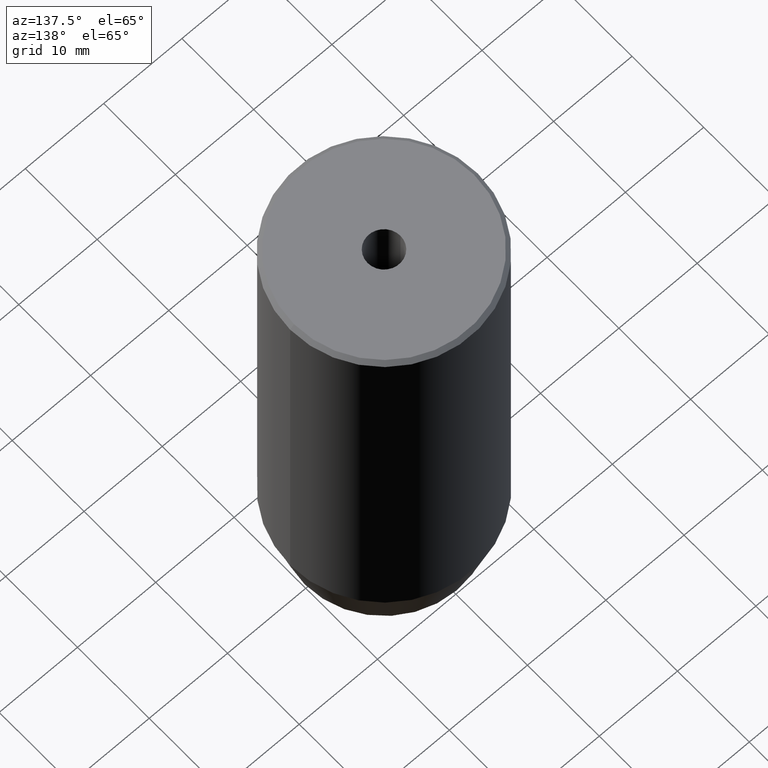
[diagram: clean part render]
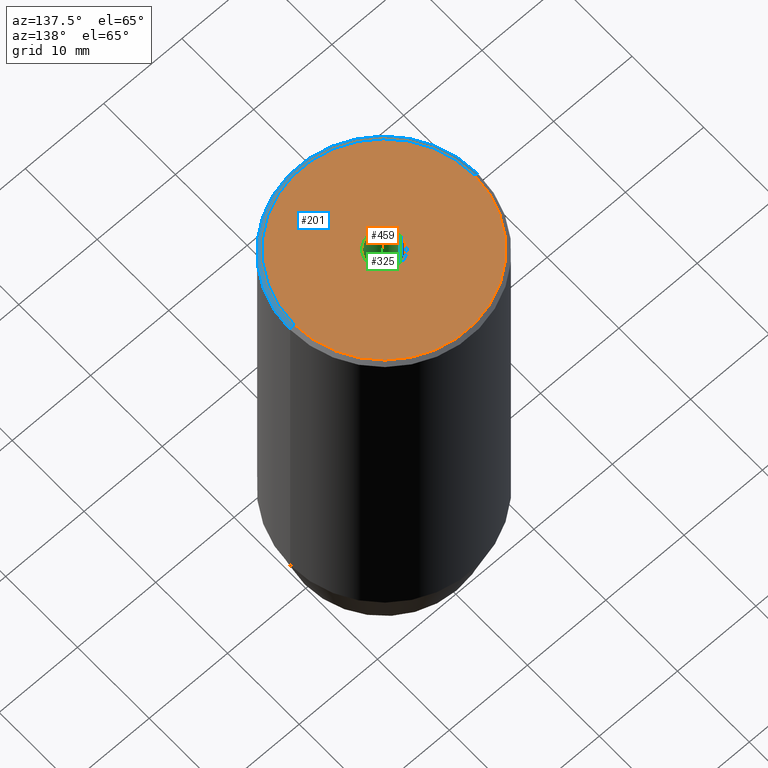
[diagram: same view with three faces highlighted in distinct colors, each labeled with its STEP entity id]
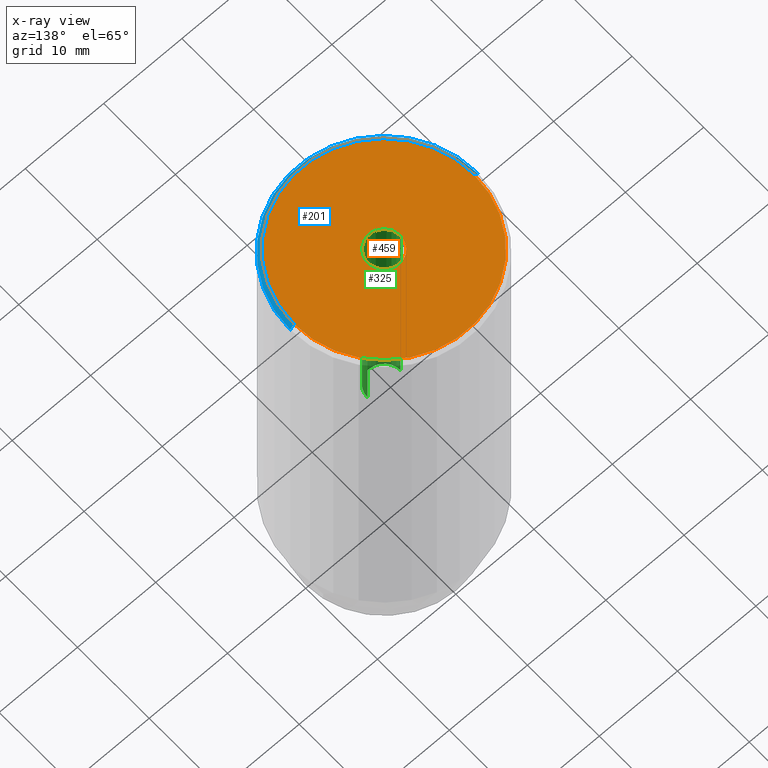
[diagram: x-ray of the same camera — body ghosted, the three highlighted faces saturated]
A machine part, auxiliary view with three faces highlighted in distinct colors.
The next image is the same camera in x-ray (body ghosted, the three faces saturated) — at least one of them is partly hidden behind the body in this view.
Their STEP definitions:

[orange] entity #459 — the highlighted planar face has unit normal (0, -0, 1).
#15 = DIRECTION ( 'NONE',  ( 1.000000000000000000, 0.000000000000000000, 0.000000000000000000 ) ) ;
#22 = CIRCLE ( 'NONE', #505, 2.099999999999998757 ) ;
#33 = DIRECTION ( 'NONE',  ( 1.000000000000000000, 0.000000000000000000, 0.000000000000000000 ) ) ;
#35 = CIRCLE ( 'NONE', #228, 11.49999999999998757 ) ;
#40 = EDGE_LOOP ( 'NONE', ( #432, #571 ) ) ;
#44 = CIRCLE ( 'NONE', #385, 2.099999999999998757 ) ;
#55 = DIRECTION ( 'NONE',  ( -0.000000000000000000, -0.000000000000000000, 1.000000000000000000 ) ) ;
#68 = CARTESIAN_POINT ( 'NONE',  ( 0.000000000000000000, 0.000000000000000000, 0.000000000000000000 ) ) ;
#85 = ORIENTED_EDGE ( 'NONE', *, *, #403, .F. ) ;
#116 = DIRECTION ( 'NONE',  ( 1.000000000000000000, 0.000000000000000000, 0.000000000000000000 ) ) ;
#124 = FACE_BOUND ( 'NONE', #466, .T. ) ;
#173 = CARTESIAN_POINT ( 'NONE',  ( 0.000000000000000000, 0.000000000000000000, 0.000000000000000000 ) ) ;
#175 = FACE_OUTER_BOUND ( 'NONE', #40, .T. ) ;
#181 = AXIS2_PLACEMENT_3D ( 'NONE', #173, #402, #33 ) ;
#221 = CARTESIAN_POINT ( 'NONE',  ( 2.099999999999998757, 0.000000000000000000, -1.990051048614449116E-16 ) ) ;
#225 = DIRECTION ( 'NONE',  ( -0.000000000000000000, -0.000000000000000000, 1.000000000000000000 ) ) ;
#228 = AXIS2_PLACEMENT_3D ( 'NONE', #577, #225, #263 ) ;
#256 = DIRECTION ( 'NONE',  ( -0.000000000000000000, -0.000000000000000000, 1.000000000000000000 ) ) ;
#263 = DIRECTION ( 'NONE',  ( 1.000000000000000000, 0.000000000000000000, 0.000000000000000000 ) ) ;
#287 = ORIENTED_EDGE ( 'NONE', *, *, #562, .F. ) ;
#309 = DIRECTION ( 'NONE',  ( 1.000000000000000000, 0.000000000000000000, 0.000000000000000000 ) ) ;
#312 = VERTEX_POINT ( 'NONE', #521 ) ;
#361 = VERTEX_POINT ( 'NONE', #426 ) ;
#385 = AXIS2_PLACEMENT_3D ( 'NONE', #479, #256, #309 ) ;
#402 = DIRECTION ( 'NONE',  ( -0.000000000000000000, -0.000000000000000000, 1.000000000000000000 ) ) ;
#403 = EDGE_CURVE ( 'NONE', #312, #422, #22, .T. ) ;
#418 = AXIS2_PLACEMENT_3D ( 'NONE', #68, #570, #116 ) ;
#422 = VERTEX_POINT ( 'NONE', #221 ) ;
#426 = CARTESIAN_POINT ( 'NONE',  ( 11.49999999999998757, 1.438959988998139174E-15, 0.000000000000000000 ) ) ;
#432 = ORIENTED_EDGE ( 'NONE', *, *, #551, .T. ) ;
#439 = CIRCLE ( 'NONE', #181, 11.49999999999998757 ) ;
#459 = ADVANCED_FACE ( 'NONE', ( #124, #175 ), #579, .T. ) ;
#466 = EDGE_LOOP ( 'NONE', ( #287, #85 ) ) ;
#468 = CARTESIAN_POINT ( 'NONE',  ( 0.000000000000000000, 0.000000000000000000, -1.990051048614449116E-16 ) ) ;
#475 = VERTEX_POINT ( 'NONE', #480 ) ;
#479 = CARTESIAN_POINT ( 'NONE',  ( 0.000000000000000000, 0.000000000000000000, -1.990051048614449116E-16 ) ) ;
#480 = CARTESIAN_POINT ( 'NONE',  ( -11.49999999999998757, 0.000000000000000000, 0.000000000000000000 ) ) ;
#505 = AXIS2_PLACEMENT_3D ( 'NONE', #468, #55, #15 ) ;
#521 = CARTESIAN_POINT ( 'NONE',  ( -2.099999999999998757, 2.571758278209440478E-16, -1.990051048614449116E-16 ) ) ;
#551 = EDGE_CURVE ( 'NONE', #475, #361, #439, .T. ) ;
#553 = EDGE_CURVE ( 'NONE', #361, #475, #35, .T. ) ;
#562 = EDGE_CURVE ( 'NONE', #422, #312, #44, .T. ) ;
#570 = DIRECTION ( 'NONE',  ( 0.000000000000000000, -0.000000000000000000, 1.000000000000000000 ) ) ;
#571 = ORIENTED_EDGE ( 'NONE', *, *, #553, .T. ) ;
#577 = CARTESIAN_POINT ( 'NONE',  ( 0.000000000000000000, 0.000000000000000000, 0.000000000000000000 ) ) ;
#579 = PLANE ( 'NONE',  #418 ) ;

[blue] entity #201 — the highlighted conical surface has half-angle 45 deg.
#33 = DIRECTION ( 'NONE',  ( 1.000000000000000000, 0.000000000000000000, 0.000000000000000000 ) ) ;
#51 = FACE_OUTER_BOUND ( 'NONE', #232, .T. ) ;
#102 = ORIENTED_EDGE ( 'NONE', *, *, #564, .F. ) ;
#143 = DIRECTION ( 'NONE',  ( 0.000000000000000000, 0.000000000000000000, -1.000000000000000000 ) ) ;
#145 = DIRECTION ( 'NONE',  ( -1.000000000000000000, 0.000000000000000000, 0.000000000000000000 ) ) ;
#151 = VECTOR ( 'NONE', #318, 1000.000000000000114 ) ;
#171 = LINE ( 'NONE', #530, #200 ) ;
#172 = AXIS2_PLACEMENT_3D ( 'NONE', #179, #539, #216 ) ;
#173 = CARTESIAN_POINT ( 'NONE',  ( 0.000000000000000000, 0.000000000000000000, 0.000000000000000000 ) ) ;
#179 = CARTESIAN_POINT ( 'NONE',  ( 0.000000000000000000, 0.000000000000000000, -0.5000000000000125455 ) ) ;
#181 = AXIS2_PLACEMENT_3D ( 'NONE', #173, #402, #33 ) ;
#191 = AXIS2_PLACEMENT_3D ( 'NONE', #550, #143, #145 ) ;
#198 = ORIENTED_EDGE ( 'NONE', *, *, #476, .F. ) ;
#200 = VECTOR ( 'NONE', #253, 1000.000000000000114 ) ;
#201 = ADVANCED_FACE ( 'NONE', ( #51 ), #425, .T. ) ;
#214 = LINE ( 'NONE', #528, #151 ) ;
#216 = DIRECTION ( 'NONE',  ( 1.000000000000000000, 0.000000000000000000, 0.000000000000000000 ) ) ;
#232 = EDGE_LOOP ( 'NONE', ( #102, #283, #260, #198 ) ) ;
#238 = CIRCLE ( 'NONE', #172, 12.00000000000000000 ) ;
#253 = DIRECTION ( 'NONE',  ( 0.7071067811865474617, 8.659560562354932858E-17, -0.7071067811865474617 ) ) ;
#260 = ORIENTED_EDGE ( 'NONE', *, *, #507, .T. ) ;
#262 = VERTEX_POINT ( 'NONE', #288 ) ;
#283 = ORIENTED_EDGE ( 'NONE', *, *, #551, .F. ) ;
#288 = CARTESIAN_POINT ( 'NONE',  ( 12.00000000000000000, 0.000000000000000000, -0.5000000000000125455 ) ) ;
#318 = DIRECTION ( 'NONE',  ( -0.7071067811865474617, 0.000000000000000000, -0.7071067811865474617 ) ) ;
#361 = VERTEX_POINT ( 'NONE', #426 ) ;
#402 = DIRECTION ( 'NONE',  ( -0.000000000000000000, -0.000000000000000000, 1.000000000000000000 ) ) ;
#425 = CONICAL_SURFACE ( 'NONE', #191, 11.49999999999998757, 0.7853981633974482790 ) ;
#426 = CARTESIAN_POINT ( 'NONE',  ( 11.49999999999998757, 1.438959988998139174E-15, 0.000000000000000000 ) ) ;
#439 = CIRCLE ( 'NONE', #181, 11.49999999999998757 ) ;
#444 = CARTESIAN_POINT ( 'NONE',  ( -12.00000000000000000, 1.469576158976823947E-15, -0.5000000000000125455 ) ) ;
#475 = VERTEX_POINT ( 'NONE', #480 ) ;
#476 = EDGE_CURVE ( 'NONE', #262, #533, #238, .T. ) ;
#480 = CARTESIAN_POINT ( 'NONE',  ( -11.49999999999998757, 0.000000000000000000, 0.000000000000000000 ) ) ;
#507 = EDGE_CURVE ( 'NONE', #475, #533, #214, .T. ) ;
#528 = CARTESIAN_POINT ( 'NONE',  ( -11.49999999999998757, 0.000000000000000000, 0.000000000000000000 ) ) ;
#530 = CARTESIAN_POINT ( 'NONE',  ( 11.49999999999998757, 1.408343819019454598E-15, 0.000000000000000000 ) ) ;
#533 = VERTEX_POINT ( 'NONE', #444 ) ;
#539 = DIRECTION ( 'NONE',  ( 0.000000000000000000, 0.000000000000000000, -1.000000000000000000 ) ) ;
#550 = CARTESIAN_POINT ( 'NONE',  ( 0.000000000000000000, 0.000000000000000000, 0.000000000000000000 ) ) ;
#551 = EDGE_CURVE ( 'NONE', #475, #361, #439, .T. ) ;
#564 = EDGE_CURVE ( 'NONE', #361, #262, #171, .T. ) ;

[green] entity #325 — the highlighted cylindrical surface (edge-blend (fillet) strip) has radius 2.1 mm, axis along (-0, -0, 1).
#13 = AXIS2_PLACEMENT_3D ( 'NONE', #244, #20, #436 ) ;
#15 = DIRECTION ( 'NONE',  ( 1.000000000000000000, 0.000000000000000000, 0.000000000000000000 ) ) ;
#20 = DIRECTION ( 'NONE',  ( -0.000000000000000000, -0.000000000000000000, 1.000000000000000000 ) ) ;
#22 = CIRCLE ( 'NONE', #505, 2.099999999999998757 ) ;
#27 = CARTESIAN_POINT ( 'NONE',  ( 0.000000000000000000, 0.000000000000000000, -30.00000000000000000 ) ) ;
#48 = EDGE_CURVE ( 'NONE', #56, #389, #281, .T. ) ;
#55 = DIRECTION ( 'NONE',  ( -0.000000000000000000, -0.000000000000000000, 1.000000000000000000 ) ) ;
#56 = VERTEX_POINT ( 'NONE', #271 ) ;
#62 = CYLINDRICAL_SURFACE ( 'NONE', #13, 2.099999999999996980 ) ;
#95 = AXIS2_PLACEMENT_3D ( 'NONE', #27, #268, #317 ) ;
#105 = FACE_OUTER_BOUND ( 'NONE', #365, .T. ) ;
#155 = ORIENTED_EDGE ( 'NONE', *, *, #403, .T. ) ;
#160 = CARTESIAN_POINT ( 'NONE',  ( 2.099999999999994760, 0.000000000000000000, -30.00000000000000000 ) ) ;
#180 = ORIENTED_EDGE ( 'NONE', *, *, #313, .T. ) ;
#208 = DIRECTION ( 'NONE',  ( -0.000000000000000000, -0.000000000000000000, 1.000000000000000000 ) ) ;
#221 = CARTESIAN_POINT ( 'NONE',  ( 2.099999999999998757, 0.000000000000000000, -1.990051048614449116E-16 ) ) ;
#244 = CARTESIAN_POINT ( 'NONE',  ( 0.000000000000000000, 0.000000000000000000, 0.000000000000000000 ) ) ;
#247 = DIRECTION ( 'NONE',  ( -0.000000000000000000, -0.000000000000000000, 1.000000000000000000 ) ) ;
#268 = DIRECTION ( 'NONE',  ( -0.000000000000000000, -0.000000000000000000, 1.000000000000000000 ) ) ;
#271 = CARTESIAN_POINT ( 'NONE',  ( -2.099999999999994760, 2.571758278209435054E-16, -30.00000000000000000 ) ) ;
#281 = CIRCLE ( 'NONE', #95, 2.099999999999994760 ) ;
#312 = VERTEX_POINT ( 'NONE', #521 ) ;
#313 = EDGE_CURVE ( 'NONE', #56, #312, #337, .T. ) ;
#317 = DIRECTION ( 'NONE',  ( 1.000000000000000000, 0.000000000000000000, 0.000000000000000000 ) ) ;
#325 = ADVANCED_FACE ( 'NONE', ( #105 ), #62, .F. ) ;
#337 = LINE ( 'NONE', #382, #471 ) ;
#339 = LINE ( 'NONE', #515, #449 ) ;
#365 = EDGE_LOOP ( 'NONE', ( #556, #180, #155, #568 ) ) ;
#382 = CARTESIAN_POINT ( 'NONE',  ( -2.099999999999996980, 2.571758278209438013E-16, 0.000000000000000000 ) ) ;
#383 = EDGE_CURVE ( 'NONE', #389, #422, #339, .T. ) ;
#389 = VERTEX_POINT ( 'NONE', #160 ) ;
#403 = EDGE_CURVE ( 'NONE', #312, #422, #22, .T. ) ;
#422 = VERTEX_POINT ( 'NONE', #221 ) ;
#436 = DIRECTION ( 'NONE',  ( 1.000000000000000000, 0.000000000000000000, 0.000000000000000000 ) ) ;
#449 = VECTOR ( 'NONE', #208, 1000.000000000000000 ) ;
#468 = CARTESIAN_POINT ( 'NONE',  ( 0.000000000000000000, 0.000000000000000000, -1.990051048614449116E-16 ) ) ;
#471 = VECTOR ( 'NONE', #247, 1000.000000000000000 ) ;
#505 = AXIS2_PLACEMENT_3D ( 'NONE', #468, #55, #15 ) ;
#515 = CARTESIAN_POINT ( 'NONE',  ( 2.099999999999996980, 0.000000000000000000, 0.000000000000000000 ) ) ;
#521 = CARTESIAN_POINT ( 'NONE',  ( -2.099999999999998757, 2.571758278209440478E-16, -1.990051048614449116E-16 ) ) ;
#556 = ORIENTED_EDGE ( 'NONE', *, *, #48, .F. ) ;
#568 = ORIENTED_EDGE ( 'NONE', *, *, #383, .F. ) ;